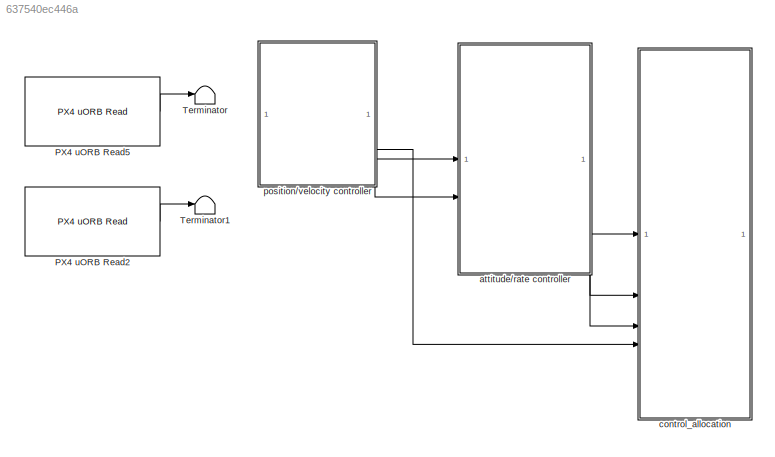
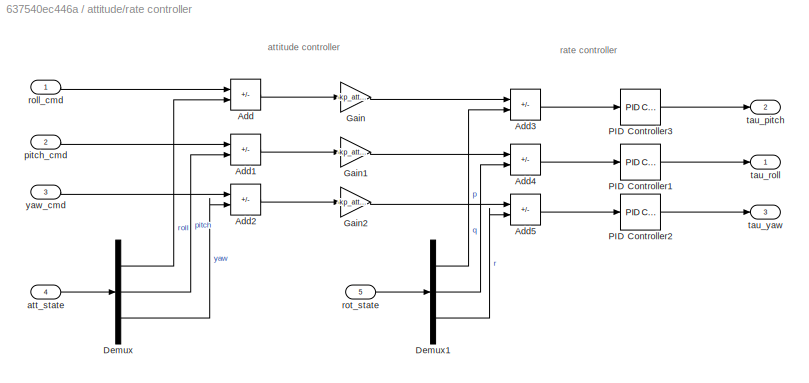
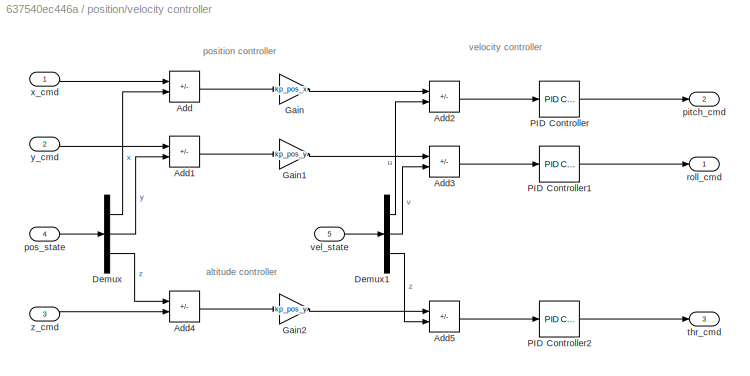
MODEL slx_637540ec446a
KIND model
CONFIG AbsTol = auto
CONFIG EnableMultiTasking = on
CONFIG FixedStep = auto
CONFIG MaxStep = auto
CONFIG MinStep = auto
CONFIG RelTol = 1e-3
CONFIG SampleTimeConstraint = Unconstrained
CONFIG SolverName = FixedStepAuto
CONFIG StartTime = 0.0
CONFIG StopTime = 10.0
BLOCK [Reference] PX4 uORB Read2  REF=px4uORBlib/PX4 uORB Read
  SourceBlock = px4uORBlib/PX4 uORB Read
  SourceType = PX4 uORB Read
BLOCK [Reference] PX4 uORB Read5  REF=px4uORBlib/PX4 uORB Read
  SourceBlock = px4uORBlib/PX4 uORB Read
  SourceType = PX4 uORB Read
BLOCK [Terminator] Terminator
BLOCK [Terminator] Terminator1
BLOCK [SubSystem] attitude//rate controller
BLOCK [Sum] attitude//rate controller/Add
  IconShape = rectangular
  Inputs = -+
BLOCK [Sum] attitude//rate controller/Add1
  IconShape = rectangular
  Inputs = -+
BLOCK [Sum] attitude//rate controller/Add2
  IconShape = rectangular
  Inputs = -+
BLOCK [Sum] attitude//rate controller/Add3
  IconShape = rectangular
  Inputs = -+
BLOCK [Sum] attitude//rate controller/Add4
  IconShape = rectangular
  Inputs = -+
BLOCK [Sum] attitude//rate controller/Add5
  IconShape = rectangular
  Inputs = -+
BLOCK [Demux] attitude//rate controller/Demux
  Outputs = 3
BLOCK [Demux] attitude//rate controller/Demux1
  Outputs = 3
BLOCK [Gain] attitude//rate controller/Gain
  Gain = -kp_att_x
BLOCK [Gain] attitude//rate controller/Gain1
  Gain = -kp_att_y
BLOCK [Gain] attitude//rate controller/Gain2
  Gain = -kp_att_z
BLOCK [Reference] attitude//rate controller/PID Controller1  REF=slpidlib/PID Controller
  LibrarySourceBlock = simulink/Continuous/PID Controller
  SourceBlock = slpidlib/PID Controller
  SourceType = PID 1dof
BLOCK [Reference] attitude//rate controller/PID Controller2  REF=slpidlib/PID Controller
  LibrarySourceBlock = simulink/Continuous/PID Controller
  SourceBlock = slpidlib/PID Controller
  SourceType = PID 1dof
BLOCK [Reference] attitude//rate controller/PID Controller3  REF=slpidlib/PID Controller
  LibrarySourceBlock = simulink/Continuous/PID Controller
  SourceBlock = slpidlib/PID Controller
  SourceType = PID 1dof
BLOCK [Inport] attitude//rate controller/att_state
  Port = 4
BLOCK [Inport] attitude//rate controller/pitch_cmd
  Port = 2
BLOCK [Inport] attitude//rate controller/roll_cmd
BLOCK [Inport] attitude//rate controller/rot_state
  Port = 5
BLOCK [Outport] attitude//rate controller/tau_pitch
  Port = 2
BLOCK [Outport] attitude//rate controller/tau_roll
BLOCK [Outport] attitude//rate controller/tau_yaw
  Port = 3
BLOCK [Inport] attitude//rate controller/yaw_cmd
  Port = 3
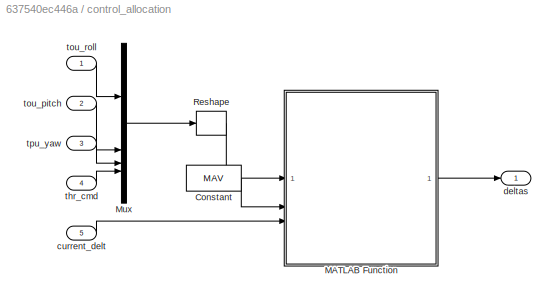
BLOCK [SubSystem] control_allocation
BLOCK [Constant] control_allocation/Constant
  OutDataTypeStr = Bus: MAV_Bus
  SampleTime = 0.1
  Value = MAV
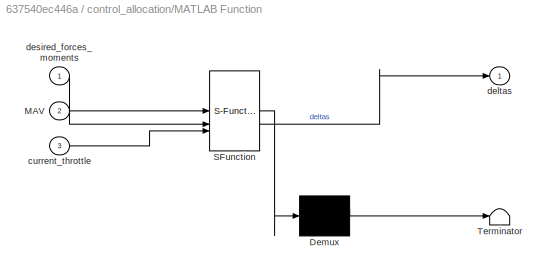
BLOCK [SubSystem] control_allocation/MATLAB Function
  ErrorFcn = Stateflow.Translate.translate
  PermitHierarchicalResolution = ExplicitOnly
  SFBlockType = MATLAB Function
  TreatAsAtomicUnit = on
BLOCK [Demux] control_allocation/MATLAB Function/ Demux 
  Outputs = 1
BLOCK [S-Function] control_allocation/MATLAB Function/ SFunction 
  EnableBusSupport = on
  FunctionName = sf_sfun
  PortCounts = [3 2]
  SFcnIsStateOwnerBlock = off
  SFunctionDeploymentMode = off
  Tag = Stateflow S-Function 2
BLOCK [Terminator] control_allocation/MATLAB Function/ Terminator 
BLOCK [Inport] control_allocation/MATLAB Function/MAV
  Port = 2
BLOCK [Inport] control_allocation/MATLAB Function/current_throttle
  Port = 3
BLOCK [Outport] control_allocation/MATLAB Function/deltas
BLOCK [Inport] control_allocation/MATLAB Function/desired_forces_moments
BLOCK [Mux] control_allocation/Mux
  DisplayOption = bar
BLOCK [Reshape] control_allocation/Reshape
  OutputDimensionality = Column vector (2-D)
BLOCK [Inport] control_allocation/current_delt
  Port = 5
BLOCK [Outport] control_allocation/deltas
BLOCK [Inport] control_allocation/thr_cmd
  Port = 4
BLOCK [Inport] control_allocation/tou_pitch
  Port = 2
BLOCK [Inport] control_allocation/tou_roll
BLOCK [Inport] control_allocation/tpu_yaw
  Port = 3
BLOCK [SubSystem] position//velocity controller
BLOCK [Sum] position//velocity controller/Add
  IconShape = rectangular
  Inputs = +-
BLOCK [Sum] position//velocity controller/Add1
  IconShape = rectangular
  Inputs = +-
BLOCK [Sum] position//velocity controller/Add2
  IconShape = rectangular
  Inputs = +-
BLOCK [Sum] position//velocity controller/Add3
  IconShape = rectangular
  Inputs = +-
BLOCK [Sum] position//velocity controller/Add4
  IconShape = rectangular
  Inputs = +-
BLOCK [Sum] position//velocity controller/Add5
  IconShape = rectangular
  Inputs = +-
BLOCK [Demux] position//velocity controller/Demux
  Outputs = 3
BLOCK [Demux] position//velocity controller/Demux1
  Outputs = 3
BLOCK [Gain] position//velocity controller/Gain
  Gain = kp_pos_x
BLOCK [Gain] position//velocity controller/Gain1
  Gain = kp_pos_y
BLOCK [Gain] position//velocity controller/Gain2
  Gain = kp_pos_y
BLOCK [Reference] position//velocity controller/PID Controller  REF=slpidlib/PID Controller
  LibrarySourceBlock = simulink/Continuous/PID Controller
  SourceBlock = slpidlib/PID Controller
  SourceType = PID 1dof
BLOCK [Reference] position//velocity controller/PID Controller1  REF=slpidlib/PID Controller
  LibrarySourceBlock = simulink/Continuous/PID Controller
  SourceBlock = slpidlib/PID Controller
  SourceType = PID 1dof
BLOCK [Reference] position//velocity controller/PID Controller2  REF=slpidlib/PID Controller
  LibrarySourceBlock = simulink/Continuous/PID Controller
  SourceBlock = slpidlib/PID Controller
  SourceType = PID 1dof
BLOCK [Outport] position//velocity controller/pitch_cmd
  Port = 2
BLOCK [Inport] position//velocity controller/pos_state
  Port = 4
BLOCK [Outport] position//velocity controller/roll_cmd
BLOCK [Outport] position//velocity controller/thr_cmd
  Port = 3
BLOCK [Inport] position//velocity controller/vel_state
  Port = 5
BLOCK [Inport] position//velocity controller/x_cmd
BLOCK [Inport] position//velocity controller/y_cmd
  Port = 2
BLOCK [Inport] position//velocity controller/z_cmd
  Port = 3
ANNOTATION attitude//rate controller: attitude controller
ANNOTATION attitude//rate controller: rate controller
ANNOTATION position//velocity controller: altitude controller
ANNOTATION position//velocity controller: position controller
ANNOTATION position//velocity controller: velocity controller
LINE PX4 uORB Read2:1 -> Terminator1:1
LINE PX4 uORB Read5:1 -> Terminator:1
LINE attitude//rate controller/Add1:1 -> attitude//rate controller/Gain1:1
LINE attitude//rate controller/Add2:1 -> attitude//rate controller/Gain2:1
LINE attitude//rate controller/Add3:1 -> attitude//rate controller/PID Controller3:1
LINE attitude//rate controller/Add4:1 -> attitude//rate controller/PID Controller1:1
LINE attitude//rate controller/Add5:1 -> attitude//rate controller/PID Controller2:1
LINE attitude//rate controller/Add:1 -> attitude//rate controller/Gain:1
LINE attitude//rate controller/Demux1:1 -> attitude//rate controller/Add3:2
LINE attitude//rate controller/Demux1:2 -> attitude//rate controller/Add4:2
LINE attitude//rate controller/Demux1:3 -> attitude//rate controller/Add5:2
LINE attitude//rate controller/Demux:1 -> attitude//rate controller/Add:2
LINE attitude//rate controller/Demux:2 -> attitude//rate controller/Add1:2
LINE attitude//rate controller/Demux:3 -> attitude//rate controller/Add2:2
LINE attitude//rate controller/Gain1:1 -> attitude//rate controller/Add4:1
LINE attitude//rate controller/Gain2:1 -> attitude//rate controller/Add5:1
LINE attitude//rate controller/Gain:1 -> attitude//rate controller/Add3:1
LINE attitude//rate controller/PID Controller1:1 -> attitude//rate controller/tau_roll:1
LINE attitude//rate controller/PID Controller2:1 -> attitude//rate controller/tau_yaw:1
LINE attitude//rate controller/PID Controller3:1 -> attitude//rate controller/tau_pitch:1
LINE attitude//rate controller/att_state:1 -> attitude//rate controller/Demux:1
LINE attitude//rate controller/pitch_cmd:1 -> attitude//rate controller/Add1:1
LINE attitude//rate controller/roll_cmd:1 -> attitude//rate controller/Add:1
LINE attitude//rate controller/rot_state:1 -> attitude//rate controller/Demux1:1
LINE attitude//rate controller/yaw_cmd:1 -> attitude//rate controller/Add2:1
LINE attitude//rate controller:1 -> control_allocation:1
LINE attitude//rate controller:2 -> control_allocation:2
LINE attitude//rate controller:3 -> control_allocation:3
LINE control_allocation/Constant:1 -> control_allocation/MATLAB Function:2
LINE control_allocation/MATLAB Function:1 -> control_allocation/deltas:1
LINE control_allocation/Mux:1 -> control_allocation/Reshape:1
LINE control_allocation/Reshape:1 -> control_allocation/MATLAB Function:1
LINE control_allocation/current_delt:1 -> control_allocation/MATLAB Function:3
LINE control_allocation/thr_cmd:1 -> control_allocation/Mux:4
LINE control_allocation/tou_pitch:1 -> control_allocation/Mux:2
LINE control_allocation/tou_roll:1 -> control_allocation/Mux:1
LINE control_allocation/tpu_yaw:1 -> control_allocation/Mux:3
LINE position//velocity controller/Add1:1 -> position//velocity controller/Gain1:1
LINE position//velocity controller/Add2:1 -> position//velocity controller/PID Controller:1
LINE position//velocity controller/Add3:1 -> position//velocity controller/PID Controller1:1
LINE position//velocity controller/Add4:1 -> position//velocity controller/Gain2:1
LINE position//velocity controller/Add5:1 -> position//velocity controller/PID Controller2:1
LINE position//velocity controller/Add:1 -> position//velocity controller/Gain:1
LINE position//velocity controller/Demux1:1 -> position//velocity controller/Add2:2
LINE position//velocity controller/Demux1:2 -> position//velocity controller/Add3:2
LINE position//velocity controller/Demux1:3 -> position//velocity controller/Add5:2
LINE position//velocity controller/Demux:1 -> position//velocity controller/Add:2
LINE position//velocity controller/Demux:2 -> position//velocity controller/Add1:2
LINE position//velocity controller/Demux:3 -> position//velocity controller/Add4:1
LINE position//velocity controller/Gain1:1 -> position//velocity controller/Add3:1
LINE position//velocity controller/Gain2:1 -> position//velocity controller/Add5:1
LINE position//velocity controller/Gain:1 -> position//velocity controller/Add2:1
LINE position//velocity controller/PID Controller1:1 -> position//velocity controller/roll_cmd:1
LINE position//velocity controller/PID Controller2:1 -> position//velocity controller/thr_cmd:1
LINE position//velocity controller/PID Controller:1 -> position//velocity controller/pitch_cmd:1
LINE position//velocity controller/pos_state:1 -> position//velocity controller/Demux:1
LINE position//velocity controller/vel_state:1 -> position//velocity controller/Demux1:1
LINE position//velocity controller/x_cmd:1 -> position//velocity controller/Add:1
LINE position//velocity controller/y_cmd:1 -> position//velocity controller/Add1:1
LINE position//velocity controller/z_cmd:1 -> position//velocity controller/Add4:2
LINE position//velocity controller:1 -> attitude//rate controller:1
LINE position//velocity controller:2 -> attitude//rate controller:2
LINE position//velocity controller:3 -> control_allocation:4
CHART control_allocation/MATLAB Function states=1 transitions=1
  STATE_LABEL 'eML_blk_kernel()'
  STATE_LABEL 'SCRIPT:\nfunction deltas  = control_allocation(desired_forces_moments, MAV, current_throttle)\n    % desired_forces_moments = [Mx; My; Mz; Fz]\n    \n    volt_now = MAV.prop_data.volt_max * current_throttle;\n    [T1, tou1] = prop_fourth_order(0, volt_now, MAV);\n    v_flap = sqrt(T1 / (2 * MAV.rho * MAV.prop_data.prop_area));\n    \n    q = 0.5 * MAV.rho * (v_flap^2); \n    C_lift = q * MAV.flap.s * MAV.f...<+922ch>'
CHART  states=0 transitions=0
